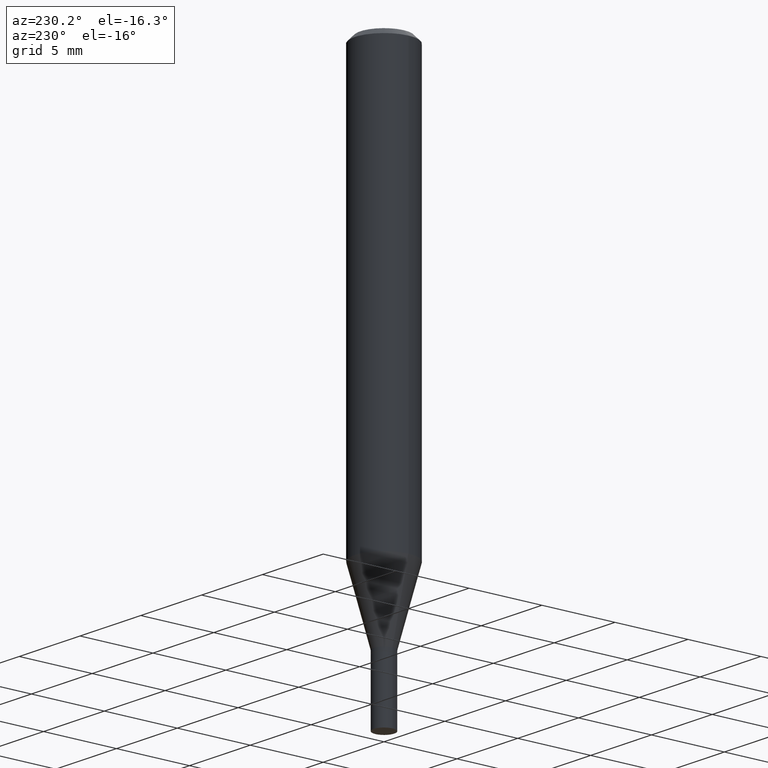
[diagram: clean part render]
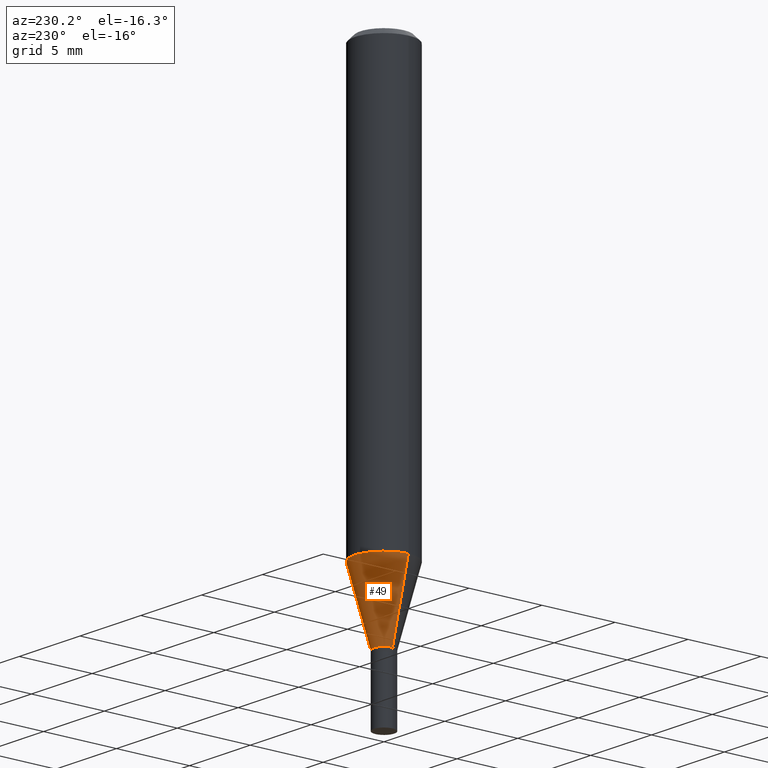
[diagram: same view with one face highlighted and labeled with its STEP entity id]
A machine part, auxiliary view. The second image highlights one B-rep face of the part: STEP entity #49.
In plain terms, the highlighted conical surface has half-angle 15 deg.
Its self-contained STEP definition (entity closure, byte-faithful):
#10 = ORIENTED_EDGE ( 'NONE', *, *, #367, .T. ) ;
#24 = CARTESIAN_POINT ( 'NONE',  ( 2.772963539945309920E-29, -3.959057023554817696E-15, -1.133918998652473586 ) ) ;
#44 = DIRECTION ( 'NONE',  ( -0.2588190451025209060, 5.211531920934547097E-15, 0.9659258262890682012 ) ) ;
#49 = ADVANCED_FACE ( 'NONE', ( #111 ), #265, .T. ) ;
#53 = LINE ( 'NONE', #344, #54 ) ;
#54 = VECTOR ( 'NONE', #342, 39.37007874015748143 ) ;
#72 = AXIS2_PLACEMENT_3D ( 'NONE', #24, #257, #215 ) ;
#79 = CARTESIAN_POINT ( 'NONE',  ( 0.02754999999999993218, -4.818593395737425055E-15, -1.325000000000000178 ) ) ;
#88 = VERTEX_POINT ( 'NONE', #79 ) ;
#111 = FACE_OUTER_BOUND ( 'NONE', #232, .T. ) ;
#121 = ORIENTED_EDGE ( 'NONE', *, *, #167, .F. ) ;
#144 = EDGE_CURVE ( 'NONE', #406, #343, #358, .T. ) ;
#167 = EDGE_CURVE ( 'NONE', #88, #340, #53, .T. ) ;
#179 = DIRECTION ( 'NONE',  ( 1.000000000000000000, -6.982962677686273810E-15, 0.000000000000000000 ) ) ;
#203 = CIRCLE ( 'NONE', #72, 0.07875000000000000056 ) ;
#215 = DIRECTION ( 'NONE',  ( 1.000000000000000000, -6.982962677686268288E-15, 0.000000000000000000 ) ) ;
#227 = ORIENTED_EDGE ( 'NONE', *, *, #425, .F. ) ;
#229 = CARTESIAN_POINT ( 'NONE',  ( -0.02754999999999993218, -4.430458250265261709E-15, -1.325000000000000178 ) ) ;
#232 = EDGE_LOOP ( 'NONE', ( #10, #287, #227, #121 ) ) ;
#254 = VECTOR ( 'NONE', #44, 39.37007874015748143 ) ;
#255 = CARTESIAN_POINT ( 'NONE',  ( 3.240246168195306775E-29, -4.626212773967169051E-15, -1.325000000000000178 ) ) ;
#257 = DIRECTION ( 'NONE',  ( -2.445468806185136597E-29, 3.491481338843145583E-15, 1.000000000000000000 ) ) ;
#265 = CONICAL_SURFACE ( 'NONE', #392, 0.02754999999999993218, 0.2617993877991495744 ) ;
#287 = ORIENTED_EDGE ( 'NONE', *, *, #144, .T. ) ;
#303 = CARTESIAN_POINT ( 'NONE',  ( 3.240246168195306775E-29, -4.626212773967169051E-15, -1.325000000000000178 ) ) ;
#308 = AXIS2_PLACEMENT_3D ( 'NONE', #255, #388, #179 ) ;
#318 = CARTESIAN_POINT ( 'NONE',  ( -0.02754999999999993218, -3.914981434704499907E-15, -1.325000000000000178 ) ) ;
#333 = DIRECTION ( 'NONE',  ( -2.445468806185136597E-29, 3.491481338843145583E-15, 1.000000000000000000 ) ) ;
#340 = VERTEX_POINT ( 'NONE', #402 ) ;
#342 = DIRECTION ( 'NONE',  ( 0.2588190451025209060, 1.565188264969625123E-15, 0.9659258262890682012 ) ) ;
#343 = VERTEX_POINT ( 'NONE', #360 ) ;
#344 = CARTESIAN_POINT ( 'NONE',  ( 0.02754999999999993218, -4.818593395737425055E-15, -1.325000000000000178 ) ) ;
#358 = LINE ( 'NONE', #229, #254 ) ;
#360 = CARTESIAN_POINT ( 'NONE',  ( -0.07875000000000001443, -3.399504619143738500E-15, -1.133918998652473586 ) ) ;
#367 = EDGE_CURVE ( 'NONE', #88, #406, #430, .T. ) ;
#388 = DIRECTION ( 'NONE',  ( -2.445468806185136597E-29, 3.491481338843145583E-15, 1.000000000000000000 ) ) ;
#392 = AXIS2_PLACEMENT_3D ( 'NONE', #303, #333, #448 ) ;
#402 = CARTESIAN_POINT ( 'NONE',  ( 0.07875000000000001443, -4.508965334422611042E-15, -1.133918998652473586 ) ) ;
#406 = VERTEX_POINT ( 'NONE', #318 ) ;
#425 = EDGE_CURVE ( 'NONE', #340, #343, #203, .T. ) ;
#430 = CIRCLE ( 'NONE', #308, 0.02754999999999993218 ) ;
#448 = DIRECTION ( 'NONE',  ( 1.000000000000000000, -6.982962677686273810E-15, 0.000000000000000000 ) ) ;